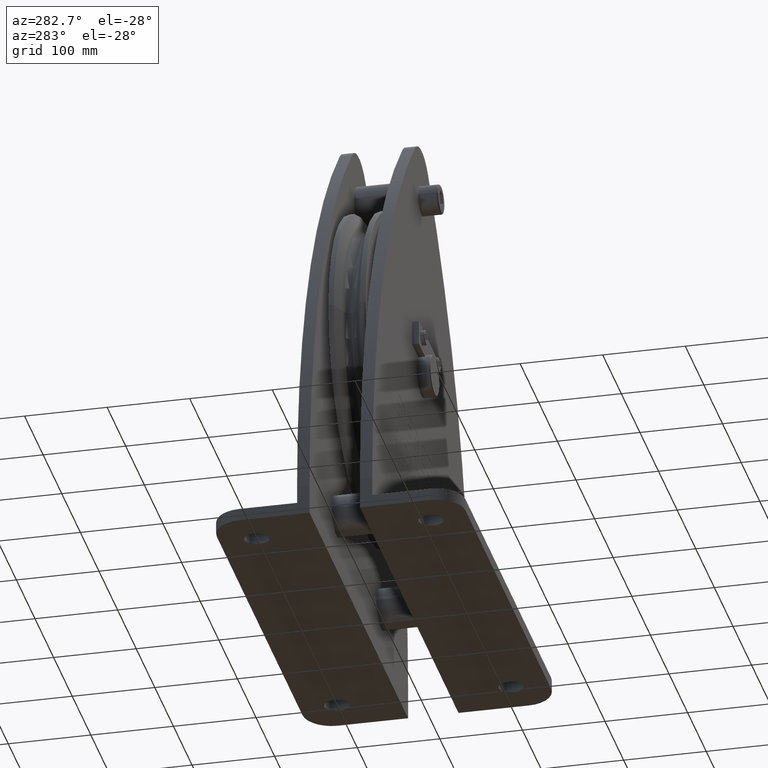
[diagram: clean part render]
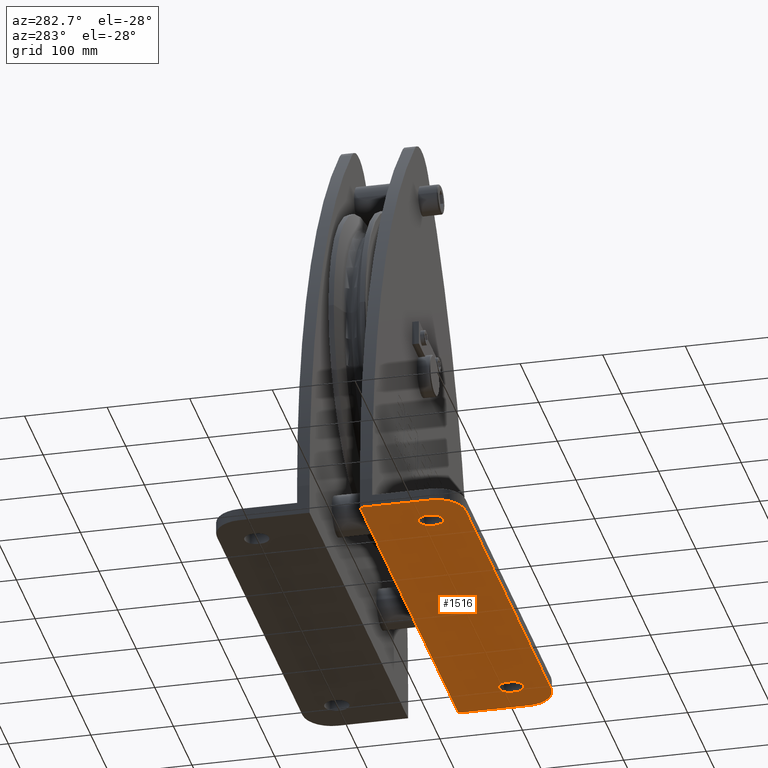
[diagram: same view with one face highlighted and labeled with its STEP entity id]
A machine part, auxiliary view. The second image highlights one B-rep face of the part: STEP entity #1516.
In plain terms, the highlighted planar face has unit normal (0, 0, -1).
Its self-contained STEP definition (entity closure, byte-faithful):
#1516=ADVANCED_FACE('',(#3295,#3296,#3297),#3298,.T.);
#3295=FACE_BOUND('',#5327,.T.);
#3296=FACE_BOUND('',#5328,.T.);
#3297=FACE_OUTER_BOUND('',#5329,.T.);
#3298=PLANE('',#5330);
#5327=EDGE_LOOP('',(#10115,#10116,#10117,#10118));
#5328=EDGE_LOOP('',(#10119,#10120,#10121,#10122));
#5329=EDGE_LOOP('',(#10123,#10124,#10125,#10126,#10127,#10128));
#5330=AXIS2_PLACEMENT_3D('',#10129,#10130,#10131);
#10115=ORIENTED_EDGE('',*,*,#13873,.T.);
#10116=ORIENTED_EDGE('',*,*,#13874,.T.);
#10117=ORIENTED_EDGE('',*,*,#13875,.T.);
#10118=ORIENTED_EDGE('',*,*,#13876,.T.);
#10119=ORIENTED_EDGE('',*,*,#13877,.T.);
#10120=ORIENTED_EDGE('',*,*,#13878,.T.);
#10121=ORIENTED_EDGE('',*,*,#13879,.T.);
#10122=ORIENTED_EDGE('',*,*,#13880,.T.);
#10123=ORIENTED_EDGE('',*,*,#13881,.T.);
#10124=ORIENTED_EDGE('',*,*,#13882,.F.);
#10125=ORIENTED_EDGE('',*,*,#13883,.T.);
#10126=ORIENTED_EDGE('',*,*,#13884,.F.);
#10127=ORIENTED_EDGE('',*,*,#13869,.F.);
#10128=ORIENTED_EDGE('',*,*,#13863,.T.);
#10129=CARTESIAN_POINT('',(0.0,-30.5,-310.0));
#10130=DIRECTION('',(0.0,0.0,-1.0));
#10131=DIRECTION('',(1.0,0.0,0.0));
#13863=EDGE_CURVE('',#17216,#17214,#17217,.T.);
#13869=EDGE_CURVE('',#17216,#17223,#17224,.T.);
#13873=EDGE_CURVE('',#17229,#17230,#17231,.T.);
#13874=EDGE_CURVE('',#17230,#17232,#17233,.T.);
#13875=EDGE_CURVE('',#17232,#17234,#17235,.T.);
#13876=EDGE_CURVE('',#17234,#17229,#17236,.T.);
#13877=EDGE_CURVE('',#17237,#17238,#17239,.T.);
#13878=EDGE_CURVE('',#17238,#17240,#17241,.T.);
#13879=EDGE_CURVE('',#17240,#17242,#17243,.T.);
#13880=EDGE_CURVE('',#17242,#17237,#17244,.T.);
#13881=EDGE_CURVE('',#17214,#17245,#17246,.T.);
#13882=EDGE_CURVE('',#17247,#17245,#17248,.T.);
#13883=EDGE_CURVE('',#17247,#17249,#17250,.T.);
#13884=EDGE_CURVE('',#17223,#17249,#17251,.T.);
#17214=VERTEX_POINT('',#24771);
#17216=VERTEX_POINT('',#24774);
#17217=LINE('',#24775,#24776);
#17223=VERTEX_POINT('',#24785);
#17224=LINE('',#24786,#24787);
#17229=VERTEX_POINT('',#24794);
#17230=VERTEX_POINT('',#24795);
#17231=CIRCLE('',#24796,13.0);
#17232=VERTEX_POINT('',#24797);
#17233=LINE('',#24798,#24799);
#17234=VERTEX_POINT('',#24800);
#17235=CIRCLE('',#24801,13.0);
#17236=LINE('',#24802,#24803);
#17237=VERTEX_POINT('',#24804);
#17238=VERTEX_POINT('',#24805);
#17239=CIRCLE('',#24806,13.0);
#17240=VERTEX_POINT('',#24807);
#17241=LINE('',#24808,#24809);
#17242=VERTEX_POINT('',#24810);
#17243=CIRCLE('',#24811,13.0);
#17244=LINE('',#24812,#24813);
#17245=VERTEX_POINT('',#24814);
#17246=LINE('',#24815,#24816);
#17247=VERTEX_POINT('',#24817);
#17248=CIRCLE('',#24818,35.0000000052);
#17249=VERTEX_POINT('',#24819);
#17250=LINE('',#24820,#24821);
#17251=CIRCLE('',#24822,35.0000000051998);
#24771=CARTESIAN_POINT('',(265.0,-30.5,-310.0));
#24774=CARTESIAN_POINT('',(-265.0,-30.5,-310.0));
#24775=CARTESIAN_POINT('',(-265.0,-30.5,-310.0));
#24776=VECTOR('',#29001,1.0);
#24785=CARTESIAN_POINT('',(-265.0,-115.499999999992,-310.0));
#24786=CARTESIAN_POINT('',(-265.0,-30.5,-310.0));
#24787=VECTOR('',#29005,1.0);
#24794=CARTESIAN_POINT('',(202.0,-107.5,-310.0));
#24795=CARTESIAN_POINT('',(228.0,-107.5,-310.0));
#24796=AXIS2_PLACEMENT_3D('',#29008,#29009,#29010);
#24797=CARTESIAN_POINT('',(228.0,-103.5,-310.0));
#24798=CARTESIAN_POINT('',(228.0,-68.0,-310.0));
#24799=VECTOR('',#29011,1.0);
#24800=CARTESIAN_POINT('',(202.0,-103.5,-310.0));
#24801=AXIS2_PLACEMENT_3D('',#29012,#29013,#29014);
#24802=CARTESIAN_POINT('',(202.0,-68.0,-310.0));
#24803=VECTOR('',#29015,1.0);
#24804=CARTESIAN_POINT('',(-228.0,-107.5,-310.0));
#24805=CARTESIAN_POINT('',(-202.0,-107.5,-310.0));
#24806=AXIS2_PLACEMENT_3D('',#29016,#29017,#29018);
#24807=CARTESIAN_POINT('',(-202.0,-103.5,-310.0));
#24808=CARTESIAN_POINT('',(-202.0,-68.0,-310.0));
#24809=VECTOR('',#29019,1.0);
#24810=CARTESIAN_POINT('',(-228.0,-103.5,-310.0));
#24811=AXIS2_PLACEMENT_3D('',#29020,#29021,#29022);
#24812=CARTESIAN_POINT('',(-228.0,-68.0,-310.0));
#24813=VECTOR('',#29023,1.0);
#24814=CARTESIAN_POINT('',(265.0,-115.5,-310.0));
#24815=CARTESIAN_POINT('',(265.0,-30.5,-310.0));
#24816=VECTOR('',#29024,1.0);
#24817=CARTESIAN_POINT('',(229.999999999992,-150.5,-310.0));
#24818=AXIS2_PLACEMENT_3D('',#29025,#29026,#29027);
#24819=CARTESIAN_POINT('',(-230.0,-150.5,-310.0));
#24820=CARTESIAN_POINT('',(230.0,-150.5,-310.0));
#24821=VECTOR('',#29028,1.0);
#24822=AXIS2_PLACEMENT_3D('',#29029,#29030,#29031);
#29001=DIRECTION('',(1.0,0.0,0.0));
#29005=DIRECTION('',(0.0,-1.0,0.0));
#29008=CARTESIAN_POINT('',(215.0,-107.5,-310.0));
#29009=DIRECTION('',(0.0,-0.0,1.0));
#29010=DIRECTION('',(1.0,2.90366021825041E-016,0.0));
#29011=DIRECTION('',(0.0,1.0,0.0));
#29012=CARTESIAN_POINT('',(215.0,-103.5,-310.0));
#29013=DIRECTION('',(0.0,-0.0,1.0));
#29014=DIRECTION('',(-1.0,0.0,0.0));
#29015=DIRECTION('',(-0.0,-1.0,-0.0));
#29016=CARTESIAN_POINT('',(-215.0,-107.5,-310.0));
#29017=DIRECTION('',(0.0,-0.0,1.0));
#29018=DIRECTION('',(1.0,2.90366021825041E-016,0.0));
#29019=DIRECTION('',(0.0,1.0,0.0));
#29020=CARTESIAN_POINT('',(-215.0,-103.5,-310.0));
#29021=DIRECTION('',(0.0,-0.0,1.0));
#29022=DIRECTION('',(-1.0,0.0,0.0));
#29023=DIRECTION('',(-0.0,-1.0,-0.0));
#29024=DIRECTION('',(0.0,-1.0,0.0));
#29025=CARTESIAN_POINT('',(229.9999999948,-115.4999999948,-310.0));
#29026=DIRECTION('',(0.0,0.0,1.0));
#29027=DIRECTION('',(1.48353202716259E-010,-1.0,0.0));
#29028=DIRECTION('',(-1.0,0.0,0.0));
#29029=CARTESIAN_POINT('',(-229.9999999948,-115.4999999948,-310.0));
#29030=DIRECTION('',(0.0,0.0,1.0));
#29031=DIRECTION('',(-1.0,-1.48349142472056E-010,0.0));